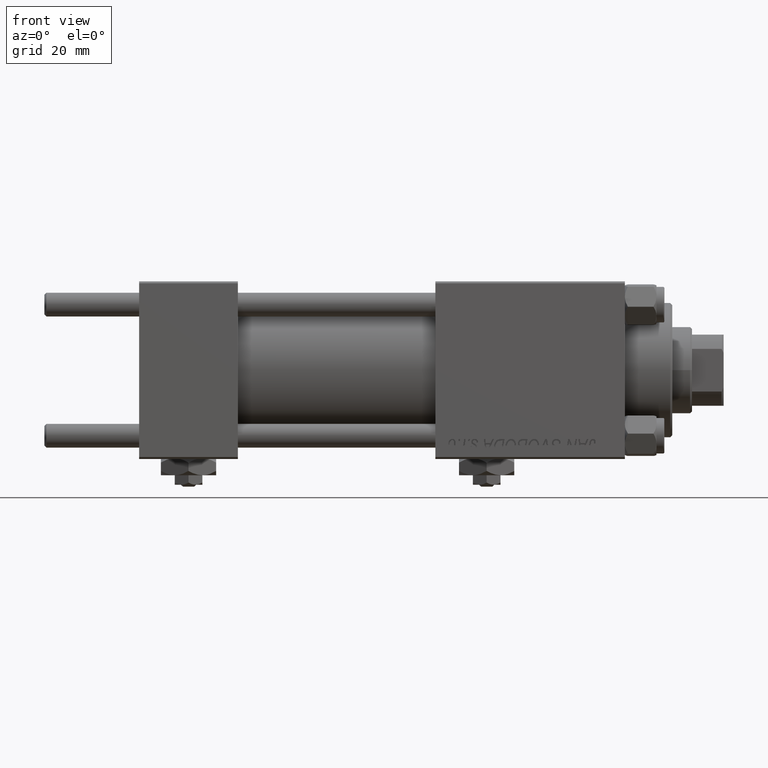
[diagram: clean part render]
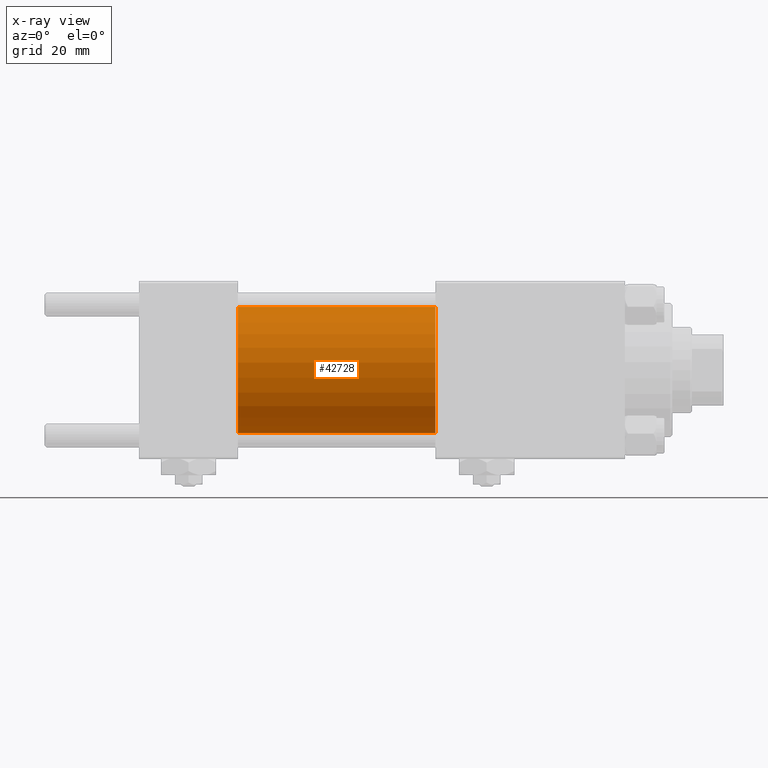
[diagram: x-ray — body ghosted, one internal face saturated and labeled with its STEP entity id]
A machine part, front view, then the same camera in x-ray: the body is ghosted and one INTERNAL B-rep face — a face not visible from any outside direction — is saturated and labeled: STEP entity #42728.
In plain terms, the highlighted cylindrical surface (partial cylindrical patch) has radius 16 mm, axis along (-1, -0, -0).
Its self-contained STEP definition (entity closure, byte-faithful):
#90 = AXIS2_PLACEMENT_3D ( 'NONE', #27249, #14620, #43007 ) ;
#1490 = VERTEX_POINT ( 'NONE', #14703 ) ;
#3424 = CARTESIAN_POINT ( 'NONE',  ( 75.00000000000001421, 0.000000000000000000, 16.00000000000000000 ) ) ;
#4541 = ORIENTED_EDGE ( 'NONE', *, *, #39070, .F. ) ;
#5649 = CARTESIAN_POINT ( 'NONE',  ( 75.00000000000001421, 0.000000000000000000, 16.00000000000000000 ) ) ;
#6083 = EDGE_CURVE ( 'NONE', #1490, #13335, #26514, .T. ) ;
#6344 = CIRCLE ( 'NONE', #17258, 16.00000000000000000 ) ;
#6513 = DIRECTION ( 'NONE',  ( -1.000000000000000000, -0.000000000000000000, -0.000000000000000000 ) ) ;
#6754 = VERTEX_POINT ( 'NONE', #39495 ) ;
#8012 = CARTESIAN_POINT ( 'NONE',  ( 75.00000000000001421, 0.000000000000000000, 0.000000000000000000 ) ) ;
#10865 = VERTEX_POINT ( 'NONE', #3424 ) ;
#11174 = FACE_OUTER_BOUND ( 'NONE', #37856, .T. ) ;
#11723 = ORIENTED_EDGE ( 'NONE', *, *, #38784, .T. ) ;
#13335 = VERTEX_POINT ( 'NONE', #49134 ) ;
#13596 = DIRECTION ( 'NONE',  ( 1.000000000000000000, 0.000000000000000000, 0.000000000000000000 ) ) ;
#14620 = DIRECTION ( 'NONE',  ( 1.000000000000000000, 0.000000000000000000, 0.000000000000000000 ) ) ;
#14703 = CARTESIAN_POINT ( 'NONE',  ( 75.00000000000001421, 1.959434878635765131E-15, -16.00000000000000000 ) ) ;
#16542 = AXIS2_PLACEMENT_3D ( 'NONE', #8012, #43762, #31936 ) ;
#17258 = AXIS2_PLACEMENT_3D ( 'NONE', #44629, #13596, #41209 ) ;
#21549 = ORIENTED_EDGE ( 'NONE', *, *, #25331, .F. ) ;
#25331 = EDGE_CURVE ( 'NONE', #6754, #13335, #44593, .T. ) ;
#25652 = DIRECTION ( 'NONE',  ( -1.000000000000000000, -0.000000000000000000, -0.000000000000000000 ) ) ;
#26514 = LINE ( 'NONE', #42528, #39006 ) ;
#27249 = CARTESIAN_POINT ( 'NONE',  ( 25.00000000000000000, 0.000000000000000000, 0.000000000000000000 ) ) ;
#31936 = DIRECTION ( 'NONE',  ( 0.000000000000000000, 0.000000000000000000, 1.000000000000000000 ) ) ;
#33229 = VECTOR ( 'NONE', #25652, 1000.000000000000000 ) ;
#33275 = LINE ( 'NONE', #5649, #33229 ) ;
#37856 = EDGE_LOOP ( 'NONE', ( #11723, #40266, #21549, #4541 ) ) ;
#38784 = EDGE_CURVE ( 'NONE', #10865, #1490, #6344, .T. ) ;
#39006 = VECTOR ( 'NONE', #6513, 1000.000000000000000 ) ;
#39070 = EDGE_CURVE ( 'NONE', #10865, #6754, #33275, .T. ) ;
#39495 = CARTESIAN_POINT ( 'NONE',  ( 25.00000000000000000, 0.000000000000000000, 16.00000000000000000 ) ) ;
#40266 = ORIENTED_EDGE ( 'NONE', *, *, #6083, .T. ) ;
#41209 = DIRECTION ( 'NONE',  ( 0.000000000000000000, 0.000000000000000000, -1.000000000000000000 ) ) ;
#42528 = CARTESIAN_POINT ( 'NONE',  ( 75.00000000000001421, 1.959434878635765131E-15, -16.00000000000000000 ) ) ;
#42728 = ADVANCED_FACE ( 'NONE', ( #11174 ), #44029, .F. ) ;
#43007 = DIRECTION ( 'NONE',  ( 0.000000000000000000, 0.000000000000000000, -1.000000000000000000 ) ) ;
#43762 = DIRECTION ( 'NONE',  ( -1.000000000000000000, -0.000000000000000000, -0.000000000000000000 ) ) ;
#44029 = CYLINDRICAL_SURFACE ( 'NONE', #16542, 16.00000000000000000 ) ;
#44593 = CIRCLE ( 'NONE', #90, 16.00000000000000000 ) ;
#44629 = CARTESIAN_POINT ( 'NONE',  ( 75.00000000000001421, 0.000000000000000000, 0.000000000000000000 ) ) ;
#49134 = CARTESIAN_POINT ( 'NONE',  ( 25.00000000000000000, 1.959434878635765131E-15, -16.00000000000000000 ) ) ;